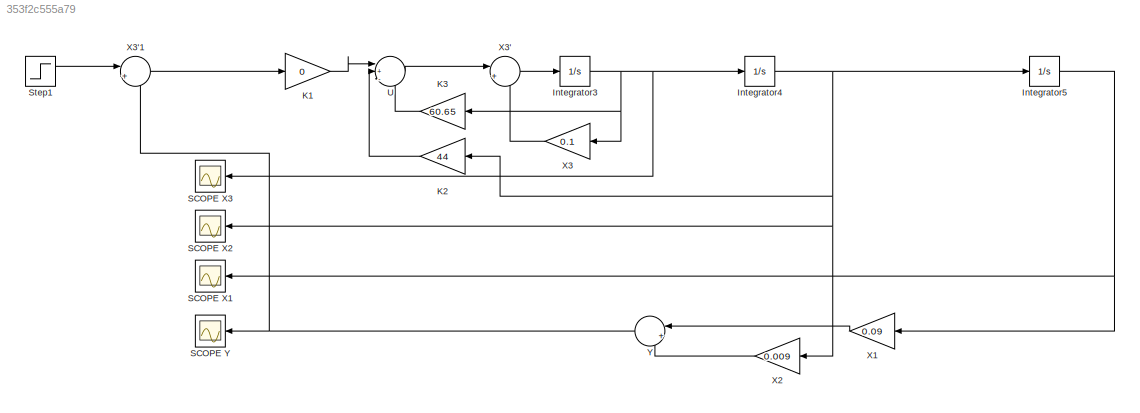
MODEL slx_353f2c555a79
KIND model
CONFIG AbsTol = auto
CONFIG EnableMultiTasking = off
CONFIG FixedStep = auto
CONFIG MaxStep = auto
CONFIG MinStep = auto
CONFIG RelTol = 1e-3
CONFIG SampleTimeConstraint = Unconstrained
CONFIG SolverName = VariableStepAuto
CONFIG StartTime = 0.0
CONFIG StopTime = 10.0
BLOCK [Integrator] Integrator3
  Ports = [1, 1]
BLOCK [Integrator] Integrator4
  Ports = [1, 1]
BLOCK [Integrator] Integrator5
  Ports = [1, 1]
BLOCK [Gain] K1
  Gain = 0
BLOCK [Gain] K2
  Gain = 44
BLOCK [Gain] K3
  Gain = 60.65
BLOCK [Scope] SCOPE X1
  Floating = off
  NumInputPorts = 1
  Ports = [1]
  ScopeSpecificationString = Simulink.scopes.TimeScopeBlockCfg('CurrentConfiguration', extmgr.ConfigurationSet(extmgr.Configuration('Core','General UI',true),extmgr.Configuration('Core','Source UI',true),extmgr.Configuration('Sources','WiredSimulink',true),extmgr.Configuration('Visuals','Time Domain',true,'SerializedDisplays',{struct('MinYLimReal','-1.00000','MaxYLimReal','1.00000','YLabelReal','','MinYLimMag','0.00000','MaxY...<+1329ch>
BLOCK [Scope] SCOPE X2
  Floating = off
  NumInputPorts = 1
  Ports = [1]
  ScopeSpecificationString = Simulink.scopes.TimeScopeBlockCfg('CurrentConfiguration', extmgr.ConfigurationSet(extmgr.Configuration('Core','General UI',true),extmgr.Configuration('Core','Source UI',true),extmgr.Configuration('Sources','WiredSimulink',true,'DataLoggingVariableName','ScopeData2'),extmgr.Configuration('Visuals','Time Domain',true,'SerializedDisplays',{struct('MinYLimReal','-1.00000','MaxYLimReal','1.00000','YLab...<+1368ch>
BLOCK [Scope] SCOPE X3
  Floating = off
  NumInputPorts = 1
  Ports = [1]
  ScopeSpecificationString = Simulink.scopes.TimeScopeBlockCfg('CurrentConfiguration', extmgr.ConfigurationSet(extmgr.Configuration('Core','General UI',true),extmgr.Configuration('Core','Source UI',true),extmgr.Configuration('Sources','WiredSimulink',true,'DataLoggingVariableName','ScopeData1'),extmgr.Configuration('Visuals','Time Domain',true,'SerializedDisplays',{struct('MinYLimReal','-1.00000','MaxYLimReal','1.00000','YLab...<+1368ch>
BLOCK [Scope] SCOPE Y
  Floating = off
  NumInputPorts = 1
  Ports = [1]
  ScopeSpecificationString = Simulink.scopes.TimeScopeBlockCfg('CurrentConfiguration', extmgr.ConfigurationSet(extmgr.Configuration('Core','General UI',true),extmgr.Configuration('Core','Source UI',true),extmgr.Configuration('Sources','WiredSimulink',true,'DataLoggingVariableName','ScopeData3'),extmgr.Configuration('Visuals','Time Domain',true,'SerializedDisplays',{struct('MinYLimReal','-1.00000','MaxYLimReal','1.00000','YLab...<+1358ch>
BLOCK [Step] Step1
  SampleTime = 0
BLOCK [Sum] U
  Inputs = |+--
  NameLocation = top
  Ports = [3, 1]
BLOCK [Gain] X1
  Gain = 0.09
BLOCK [Gain] X2
  Gain = 0.009
BLOCK [Gain] X3
  Gain = 0.1
BLOCK [Sum] X3'
  Inputs = |+-
  NameLocation = top
  Ports = [2, 1]
BLOCK [Sum] X3'1
  Inputs = |+-
  NameLocation = top
  Ports = [2, 1]
BLOCK [Sum] Y
  Inputs = |++
  NameLocation = top
  Ports = [2, 1]
NET Integrator3:1 -> Integrator4:1, K3:1, SCOPE X3:1, X3:1
NET Integrator4:1 -> Integrator5:1, K2:1, SCOPE X2:1, X2:1
NET Integrator5:1 -> SCOPE X1:1, X1:1
LINE K1:1 -> U:1
LINE K2:1 -> U:2
LINE K3:1 -> U:3
LINE Step1:1 -> X3'1:1
LINE U:1 -> X3':1
LINE X1:1 -> Y:1
LINE X2:1 -> Y:2
LINE X3'1:1 -> K1:1
LINE X3':1 -> Integrator3:1
LINE X3:1 -> X3':2
NET Y:1 -> SCOPE Y:1, X3'1:2
note: NET lines group one-source signal fan-out (src -> all destinations, sorted); 1:1 wires keep LINE
